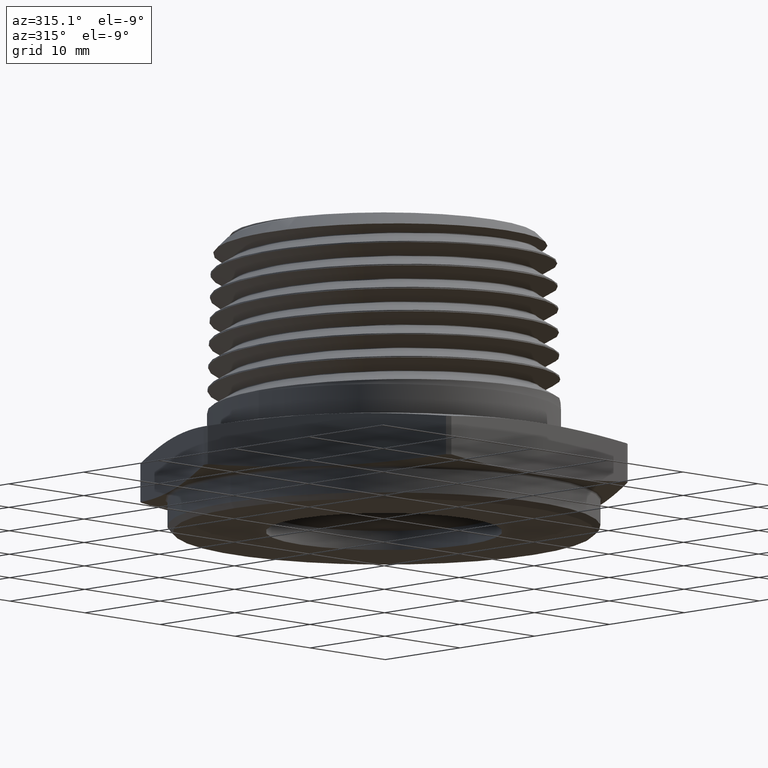
[diagram: clean part render]
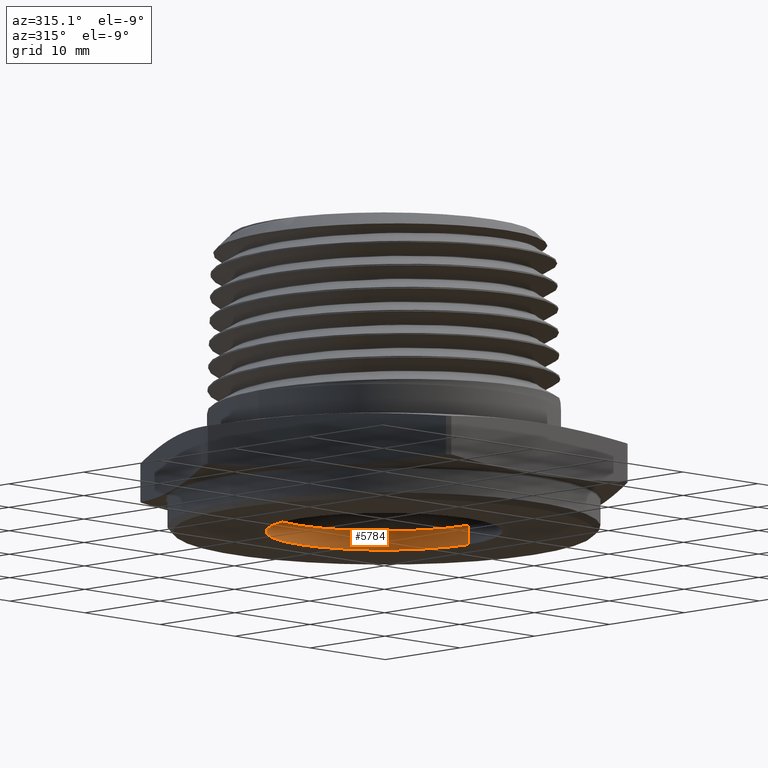
[diagram: same view with one face highlighted and labeled with its STEP entity id]
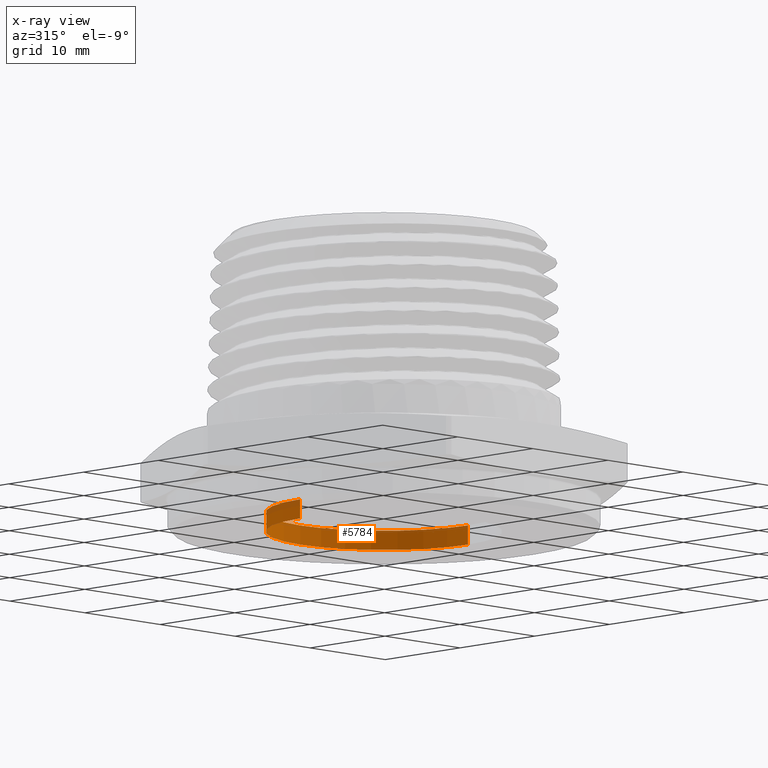
[diagram: x-ray of the same camera — body ghosted, the highlighted face saturated]
A machine part, auxiliary view. The second image highlights one B-rep face of the part: STEP entity #5784.
The next image is the same camera in x-ray: the body ghosted, the highlighted face saturated — about 5% of this face is hidden behind the body in this view.
In plain terms, the highlighted cylindrical surface (partial cylindrical patch) has radius 11.176 mm, axis along (-0, -0, -1).
Its self-contained STEP definition (entity closure, byte-faithful):
#13 = LINE ( 'NONE', #5631, #17 ) ;
#17 = VECTOR ( 'NONE', #5625, 39.37007874015748100 ) ;
#20 = LINE ( 'NONE', #5624, #22 ) ;
#22 = VECTOR ( 'NONE', #5626, 39.37007874015748100 ) ;
#140 = CIRCLE ( 'NONE', #3979, 0.4400000000000000000 ) ;
#142 = CIRCLE ( 'NONE', #3978, 0.4400000000000000000 ) ;
#179 = FACE_OUTER_BOUND ( 'NONE', #267, .T. ) ;
#186 = CYLINDRICAL_SURFACE ( 'NONE', #1521, 0.4400000000000000000 ) ;
#267 = EDGE_LOOP ( 'NONE', ( #1571, #1570, #1569, #1568 ) ) ;
#1521 = AXIS2_PLACEMENT_3D ( 'NONE', #4525, #4521, #4523 ) ;
#1568 = ORIENTED_EDGE ( 'NONE', *, *, #3907, .T. ) ;
#1569 = ORIENTED_EDGE ( 'NONE', *, *, #3776, .T. ) ;
#1570 = ORIENTED_EDGE ( 'NONE', *, *, #3909, .F. ) ;
#1571 = ORIENTED_EDGE ( 'NONE', *, *, #3773, .F. ) ;
#3773 = EDGE_CURVE ( 'NONE', #4858, #4772, #13, .T. ) ;
#3776 = EDGE_CURVE ( 'NONE', #4797, #4773, #20, .T. ) ;
#3907 = EDGE_CURVE ( 'NONE', #4773, #4772, #142, .T. ) ;
#3909 = EDGE_CURVE ( 'NONE', #4797, #4858, #140, .T. ) ;
#3978 = AXIS2_PLACEMENT_3D ( 'NONE', #6603, #6604, #6605 ) ;
#3979 = AXIS2_PLACEMENT_3D ( 'NONE', #6616, #6617, #6618 ) ;
#4363 = CARTESIAN_POINT ( 'NONE',  ( 0.4400000000000000000, 5.388445916248354500E-017, -0.1200000000000000000 ) ) ;
#4364 = CARTESIAN_POINT ( 'NONE',  ( -0.4400000000000000000, 0.0000000000000000000, -0.1200000000000000000 ) ) ;
#4383 = CARTESIAN_POINT ( 'NONE',  ( -0.4400000000000000000, 0.0000000000000000000, -0.04800000000000000800 ) ) ;
#4406 = CARTESIAN_POINT ( 'NONE',  ( 0.4400000000000000000, 5.388445916248354500E-017, -0.04800000000000000800 ) ) ;
#4521 = DIRECTION ( 'NONE',  ( -0.0000000000000000000, -0.0000000000000000000, -1.000000000000000000 ) ) ;
#4523 = DIRECTION ( 'NONE',  ( -1.000000000000000000, 0.0000000000000000000, 0.0000000000000000000 ) ) ;
#4525 = CARTESIAN_POINT ( 'NONE',  ( 2.449293598294655500E-018, 0.0000000000000000000, -0.1200000000000000000 ) ) ;
#4772 = VERTEX_POINT ( 'NONE', #4363 ) ;
#4773 = VERTEX_POINT ( 'NONE', #4364 ) ;
#4797 = VERTEX_POINT ( 'NONE', #4383 ) ;
#4858 = VERTEX_POINT ( 'NONE', #4406 ) ;
#5624 = CARTESIAN_POINT ( 'NONE',  ( -0.4400000000000000000, 0.0000000000000000000, -0.1200000000000000000 ) ) ;
#5625 = DIRECTION ( 'NONE',  ( -0.0000000000000000000, -0.0000000000000000000, -1.000000000000000000 ) ) ;
#5626 = DIRECTION ( 'NONE',  ( -0.0000000000000000000, -0.0000000000000000000, -1.000000000000000000 ) ) ;
#5631 = CARTESIAN_POINT ( 'NONE',  ( 0.4400000000000000000, 5.388445916248354500E-017, -0.1200000000000000000 ) ) ;
#5784 = ADVANCED_FACE ( 'NONE', ( #179 ), #186, .F. ) ;
#6603 = CARTESIAN_POINT ( 'NONE',  ( 2.449293598294655500E-018, 0.0000000000000000000, -0.1200000000000000000 ) ) ;
#6604 = DIRECTION ( 'NONE',  ( -0.0000000000000000000, -0.0000000000000000000, -1.000000000000000000 ) ) ;
#6605 = DIRECTION ( 'NONE',  ( -1.000000000000000000, 0.0000000000000000000, 0.0000000000000000000 ) ) ;
#6616 = CARTESIAN_POINT ( 'NONE',  ( 2.449293598294655500E-018, 0.0000000000000000000, -0.04800000000000000800 ) ) ;
#6617 = DIRECTION ( 'NONE',  ( -0.0000000000000000000, -0.0000000000000000000, -1.000000000000000000 ) ) ;
#6618 = DIRECTION ( 'NONE',  ( -1.000000000000000000, 0.0000000000000000000, 0.0000000000000000000 ) ) ;